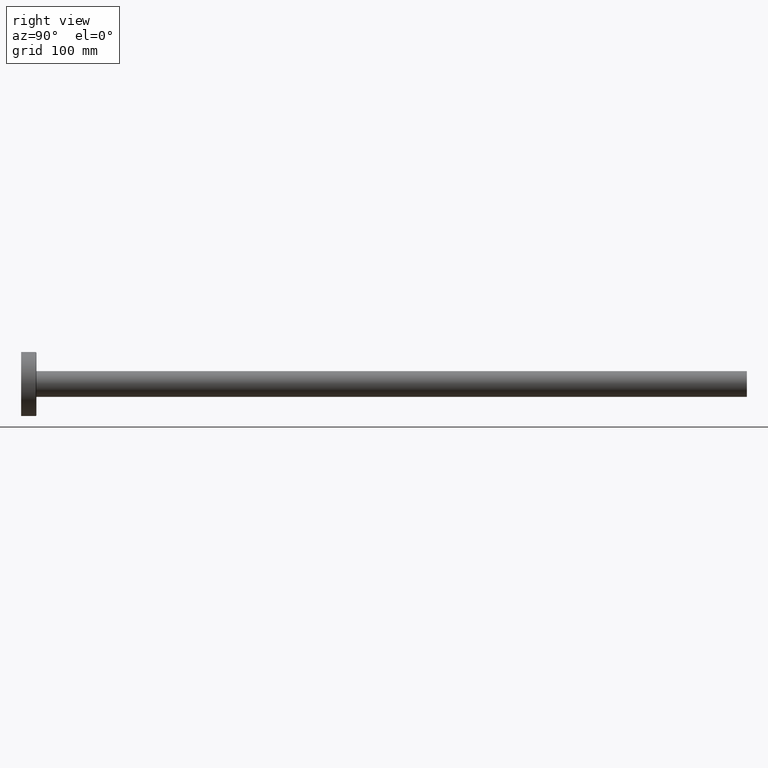
[diagram: clean part render]
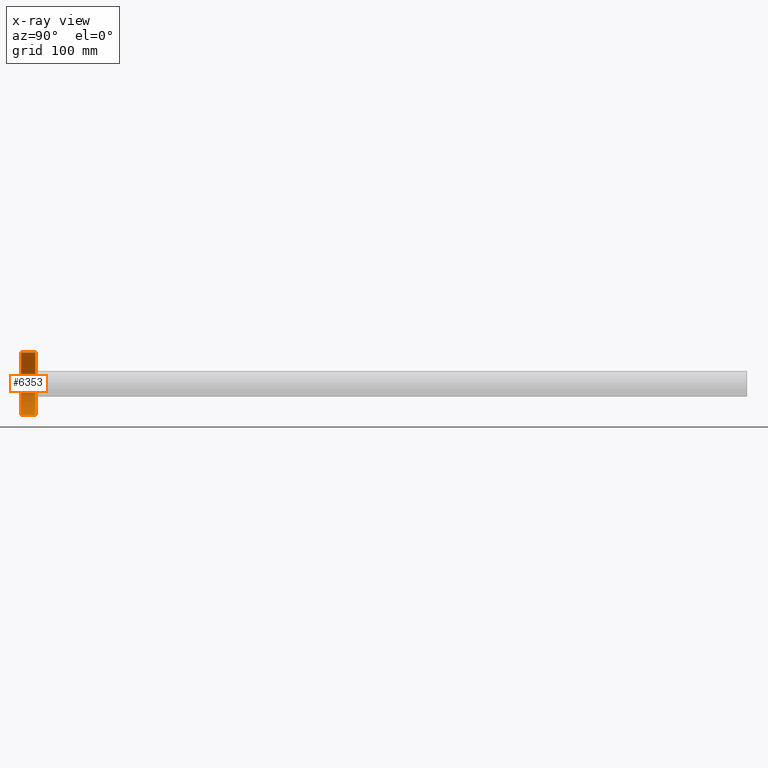
[diagram: x-ray — body ghosted, one internal face saturated and labeled with its STEP entity id]
A machine part, right view, then the same camera in x-ray: the body is ghosted and one INTERNAL B-rep face — a face not visible from any outside direction — is saturated and labeled: STEP entity #6353.
In plain terms, the highlighted cylindrical surface (edge-blend (fillet) strip) has radius 51.5 mm, axis along (-0, -1, -0).
Its self-contained STEP definition (entity closure, byte-faithful):
#222 = CYLINDRICAL_SURFACE ( 'NONE', #13584, 51.50000000000000000 ) ;
#271 = EDGE_LOOP ( 'NONE', ( #2850, #5327, #3742, #2933 ) ) ;
#389 = EDGE_CURVE ( 'NONE', #3526, #14095, #5930, .T. ) ;
#586 = CARTESIAN_POINT ( 'NONE',  ( 0.0000000000000000000, 0.0000000000000000000, 0.0000000000000000000 ) ) ;
#691 = AXIS2_PLACEMENT_3D ( 'NONE', #12634, #3818, #2737 ) ;
#1218 = CARTESIAN_POINT ( 'NONE',  ( 0.0000000000000000000, 0.0000000000000000000, -51.50000000000000000 ) ) ;
#2737 = DIRECTION ( 'NONE',  ( 0.0000000000000000000, 0.0000000000000000000, -1.000000000000000000 ) ) ;
#2850 = ORIENTED_EDGE ( 'NONE', *, *, #11639, .F. ) ;
#2933 = ORIENTED_EDGE ( 'NONE', *, *, #389, .F. ) ;
#3089 = VERTEX_POINT ( 'NONE', #4515 ) ;
#3526 = VERTEX_POINT ( 'NONE', #8123 ) ;
#3742 = ORIENTED_EDGE ( 'NONE', *, *, #7580, .T. ) ;
#3818 = DIRECTION ( 'NONE',  ( -0.0000000000000000000, -1.000000000000000000, -0.0000000000000000000 ) ) ;
#3933 = DIRECTION ( 'NONE',  ( -0.0000000000000000000, -1.000000000000000000, -0.0000000000000000000 ) ) ;
#4515 = CARTESIAN_POINT ( 'NONE',  ( 6.306931015608868800E-015, 0.0000000000000000000, 51.50000000000000000 ) ) ;
#4576 = CARTESIAN_POINT ( 'NONE',  ( 0.0000000000000000000, 0.0000000000000000000, 0.0000000000000000000 ) ) ;
#4622 = DIRECTION ( 'NONE',  ( -0.0000000000000000000, -1.000000000000000000, -0.0000000000000000000 ) ) ;
#4858 = CIRCLE ( 'NONE', #7489, 51.50000000000000000 ) ;
#5143 = VERTEX_POINT ( 'NONE', #7204 ) ;
#5327 = ORIENTED_EDGE ( 'NONE', *, *, #10567, .T. ) ;
#5930 = LINE ( 'NONE', #1218, #8537 ) ;
#5993 = DIRECTION ( 'NONE',  ( -0.0000000000000000000, -1.000000000000000000, -0.0000000000000000000 ) ) ;
#6353 = ADVANCED_FACE ( 'NONE', ( #10318 ), #222, .F. ) ;
#7204 = CARTESIAN_POINT ( 'NONE',  ( 6.306931015608868800E-015, 23.49999999999999300, 51.50000000000000000 ) ) ;
#7489 = AXIS2_PLACEMENT_3D ( 'NONE', #586, #3933, #10603 ) ;
#7580 = EDGE_CURVE ( 'NONE', #3089, #14095, #4858, .T. ) ;
#8123 = CARTESIAN_POINT ( 'NONE',  ( 0.0000000000000000000, 23.49999999999999300, -51.50000000000000000 ) ) ;
#8537 = VECTOR ( 'NONE', #12384, 1000.000000000000000 ) ;
#10063 = VECTOR ( 'NONE', #5993, 1000.000000000000000 ) ;
#10318 = FACE_OUTER_BOUND ( 'NONE', #271, .T. ) ;
#10567 = EDGE_CURVE ( 'NONE', #5143, #3089, #12677, .T. ) ;
#10603 = DIRECTION ( 'NONE',  ( 0.0000000000000000000, 0.0000000000000000000, -1.000000000000000000 ) ) ;
#11639 = EDGE_CURVE ( 'NONE', #5143, #3526, #13558, .T. ) ;
#12113 = CARTESIAN_POINT ( 'NONE',  ( 0.0000000000000000000, 0.0000000000000000000, -51.50000000000000000 ) ) ;
#12384 = DIRECTION ( 'NONE',  ( -0.0000000000000000000, -1.000000000000000000, -0.0000000000000000000 ) ) ;
#12400 = DIRECTION ( 'NONE',  ( 0.0000000000000000000, 0.0000000000000000000, -1.000000000000000000 ) ) ;
#12634 = CARTESIAN_POINT ( 'NONE',  ( 0.0000000000000000000, 23.49999999999999300, 0.0000000000000000000 ) ) ;
#12677 = LINE ( 'NONE', #12710, #10063 ) ;
#12710 = CARTESIAN_POINT ( 'NONE',  ( 6.306931015608868800E-015, 0.0000000000000000000, 51.50000000000000000 ) ) ;
#13558 = CIRCLE ( 'NONE', #691, 51.50000000000000000 ) ;
#13584 = AXIS2_PLACEMENT_3D ( 'NONE', #4576, #4622, #12400 ) ;
#14095 = VERTEX_POINT ( 'NONE', #12113 ) ;